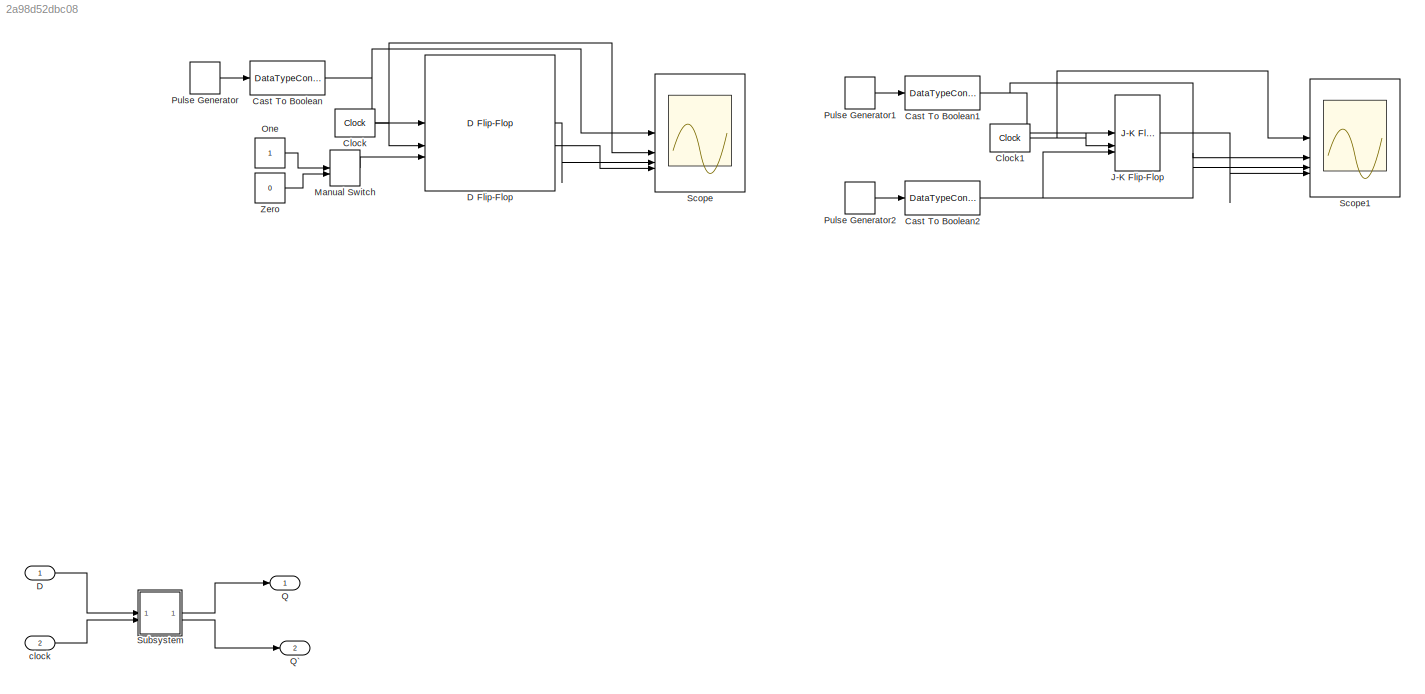
MODEL slx_2a98d52dbc08
KIND model
CONFIG AbsTol = auto
CONFIG EnableMultiTasking = off
CONFIG FixedStep = auto
CONFIG MaxStep = auto
CONFIG MinStep = auto
CONFIG RelTol = 1e-3
CONFIG SampleTimeConstraint = Unconstrained
CONFIG SolverName = VariableStepAuto
CONFIG StartTime = 0.0
CONFIG StopTime = 10.0
BLOCK [DataTypeConversion] Cast To Boolean
  OutDataTypeStr = boolean
  RndMeth = Floor
  SaturateOnIntegerOverflow = off
BLOCK [DataTypeConversion] Cast To Boolean1
  OutDataTypeStr = boolean
  RndMeth = Floor
  SaturateOnIntegerOverflow = off
BLOCK [DataTypeConversion] Cast To Boolean2
  OutDataTypeStr = boolean
  RndMeth = Floor
  SaturateOnIntegerOverflow = off
BLOCK [Reference] Clock  REF=simulink_extras/Flip Flops/Clock
  SourceBlock = simulink_extras/Flip Flops/Clock
  SourceType = Digital clock
BLOCK [Reference] Clock1  REF=simulink_extras/Flip Flops/Clock
  SourceBlock = simulink_extras/Flip Flops/Clock
  SourceType = Digital clock
BLOCK [Inport] D
BLOCK [Reference] D Flip-Flop  REF=simulink_extras/Flip Flops/D Flip-Flop
  SourceBlock = simulink_extras/Flip Flops/D Flip-Flop
  SourceType = DFlipFlop
BLOCK [Reference] J-K Flip-Flop  REF=simulink_extras/Flip Flops/J-K
Flip-Flop
  SourceBlock = simulink_extras/Flip Flops/J-K\nFlip-Flop
  SourceType = JKFlipFlop
BLOCK [ManualSwitch] Manual Switch
BLOCK [Constant] One
  OutDataTypeStr = boolean
BLOCK [DiscretePulseGenerator] Pulse Generator
  PulseType = Time based
  PulseWidth = 50
BLOCK [DiscretePulseGenerator] Pulse Generator1
  PulseType = Time based
  PulseWidth = 50
BLOCK [DiscretePulseGenerator] Pulse Generator2
  Period = 4
  PulseType = Time based
  PulseWidth = 50
BLOCK [Outport] Q
BLOCK [Outport] Q`
  Port = 2
BLOCK [Scope] Scope
  Floating = off
  NumInputPorts = 4
  ScopeSpecificationString = Simulink.scopes.TimeScopeBlockCfg('CurrentConfiguration', extmgr.ConfigurationSet(extmgr.Configuration('Core','General UI',true),extmgr.Configuration('Core','Source UI',true),extmgr.Configuration('Sources','WiredSimulink',true),extmgr.Configuration('Visuals','Time Domain',true,'SerializedDisplays',{struct('MinYLimReal','-0.125','MaxYLimReal','1.125','YLabelReal','','MinYLimMag','0.00000','MaxYLimM...<+3408ch>
BLOCK [Scope] Scope1
  Floating = off
  NumInputPorts = 4
  ScopeSpecificationString = Simulink.scopes.TimeScopeBlockCfg('CurrentConfiguration', extmgr.ConfigurationSet(extmgr.Configuration('Core','General UI',true),extmgr.Configuration('Core','Source UI',true),extmgr.Configuration('Sources','WiredSimulink',true,'DataLoggingVariableName','ScopeData1'),extmgr.Configuration('Visuals','Time Domain',true,'SerializedDisplays',{struct('MinYLimReal','-0.125','MaxYLimReal','1.125','YLabelRe...<+3454ch>
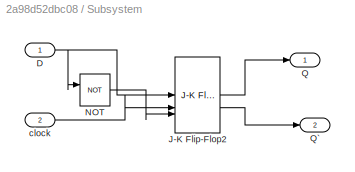
BLOCK [SubSystem] Subsystem
BLOCK [Inport] Subsystem/D
BLOCK [Reference] Subsystem/J-K Flip-Flop2  REF=simulink_extras/Flip Flops/J-K
Flip-Flop
  SourceBlock = simulink_extras/Flip Flops/J-K\nFlip-Flop
  SourceType = JKFlipFlop
BLOCK [Logic] Subsystem/NOT
  AllPortsSameDT = off
  IconShape = distinctive
  Operator = NOT
  OutDataTypeStr = boolean
BLOCK [Outport] Subsystem/Q
BLOCK [Outport] Subsystem/Q`
  Port = 2
BLOCK [Inport] Subsystem/clock
  Port = 2
BLOCK [Constant] Zero
  OutDataTypeStr = boolean
  Value = 0
BLOCK [Inport] clock
  Port = 2
NET Cast To Boolean1:1 -> J-K Flip-Flop:1, Scope1:2
NET Cast To Boolean2:1 -> J-K Flip-Flop:3, Scope1:3
NET Cast To Boolean:1 -> D Flip-Flop:1, Scope:1
NET Clock1:1 -> J-K Flip-Flop:2, Scope1:1
NET Clock:1 -> D Flip-Flop:2, Scope:2
LINE D Flip-Flop:1 -> Scope:3
LINE D Flip-Flop:2 -> Scope:4
LINE D:1 -> Subsystem:1
LINE J-K Flip-Flop:1 -> Scope1:4
LINE Manual Switch:1 -> D Flip-Flop:3
LINE One:1 -> Manual Switch:1
LINE Pulse Generator1:1 -> Cast To Boolean1:1
LINE Pulse Generator2:1 -> Cast To Boolean2:1
LINE Pulse Generator:1 -> Cast To Boolean:1
NET Subsystem/D:1 -> Subsystem/J-K Flip-Flop2:1, Subsystem/NOT:1
LINE Subsystem/J-K Flip-Flop2:1 -> Subsystem/Q:1
LINE Subsystem/J-K Flip-Flop2:2 -> Subsystem/Q`:1
LINE Subsystem/NOT:1 -> Subsystem/J-K Flip-Flop2:3
LINE Subsystem/clock:1 -> Subsystem/J-K Flip-Flop2:2
LINE Subsystem:1 -> Q:1
LINE Subsystem:2 -> Q`:1
LINE Zero:1 -> Manual Switch:2
LINE clock:1 -> Subsystem:2
note: NET lines group one-source signal fan-out (src -> all destinations, sorted); 1:1 wires keep LINE
